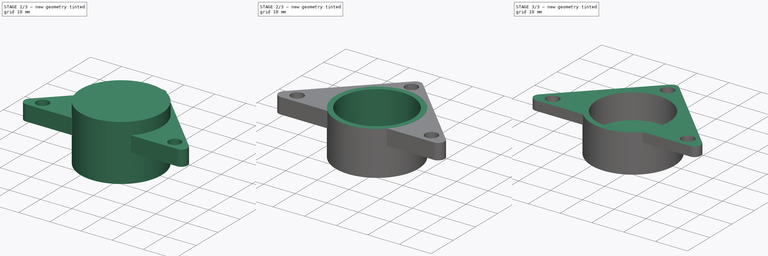
[diagram: build sequence overview — one tinted view per stage of 3, left to right]
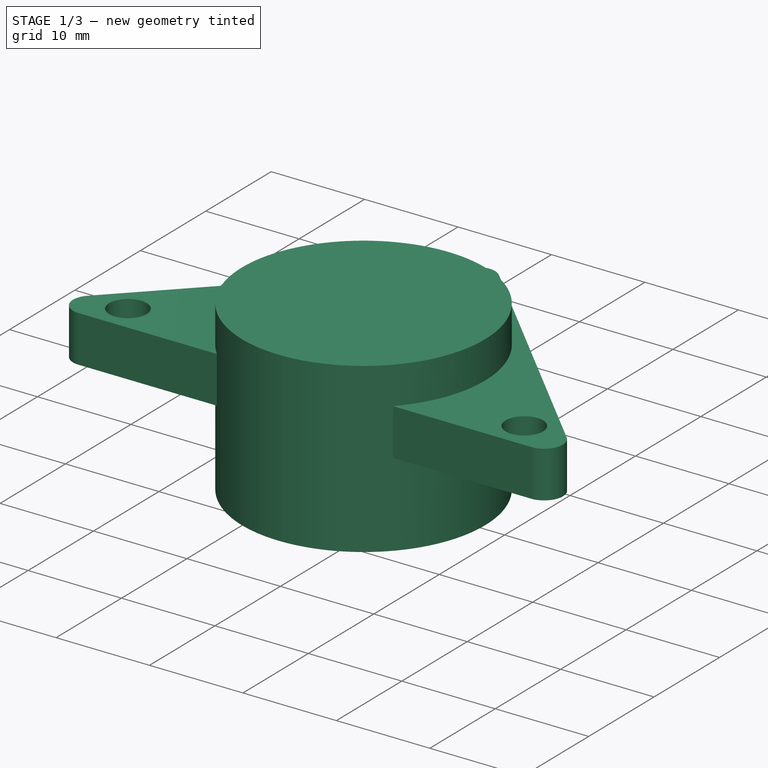
[diagram: stage 1 of 3 — iso view after this stage's code; geometry added in this stage tinted green]
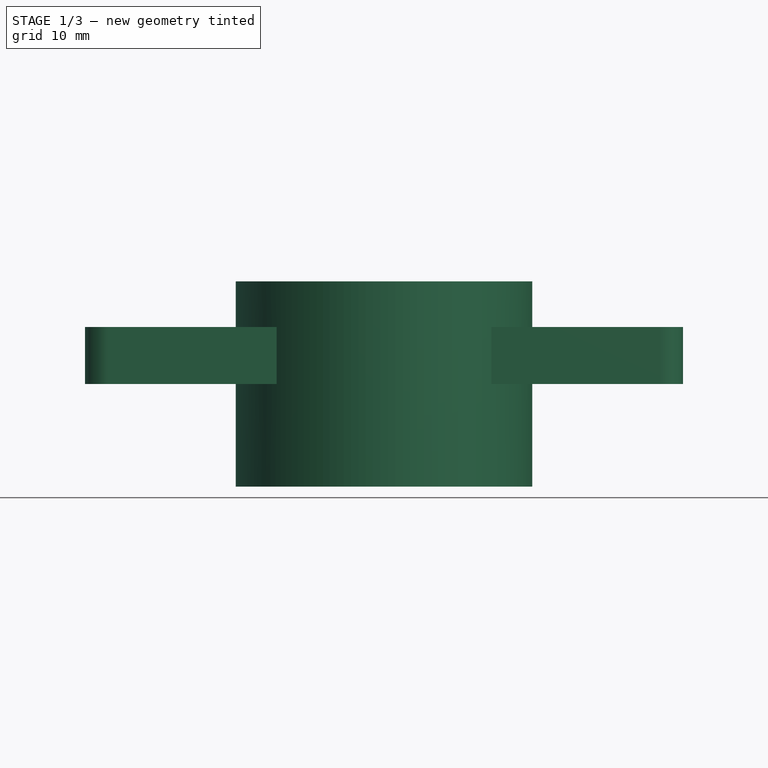
[diagram: stage 1 of 3 — front view after this stage's code; geometry added in this stage tinted green]
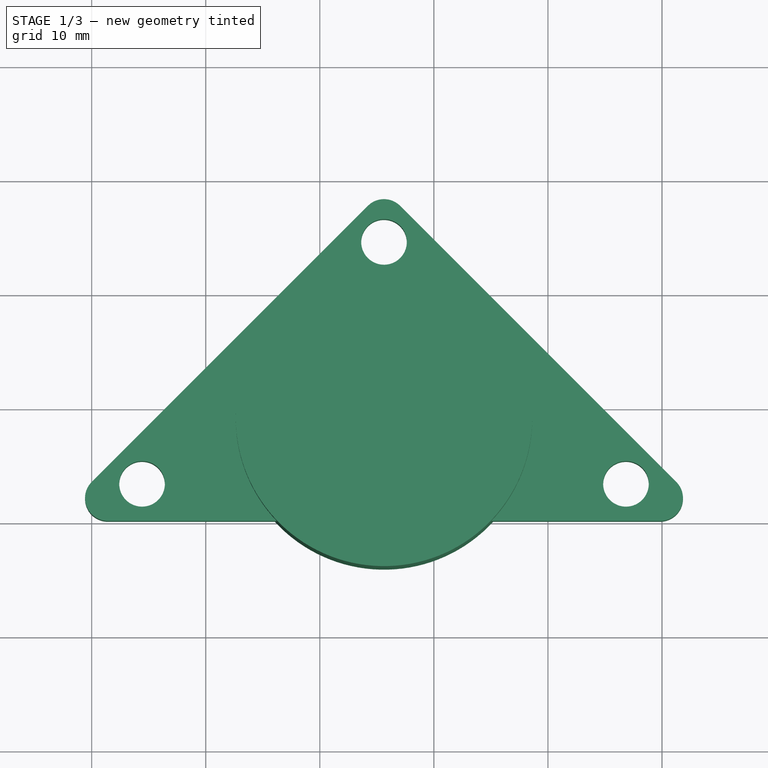
[diagram: stage 1 of 3 — top view after this stage's code; geometry added in this stage tinted green]
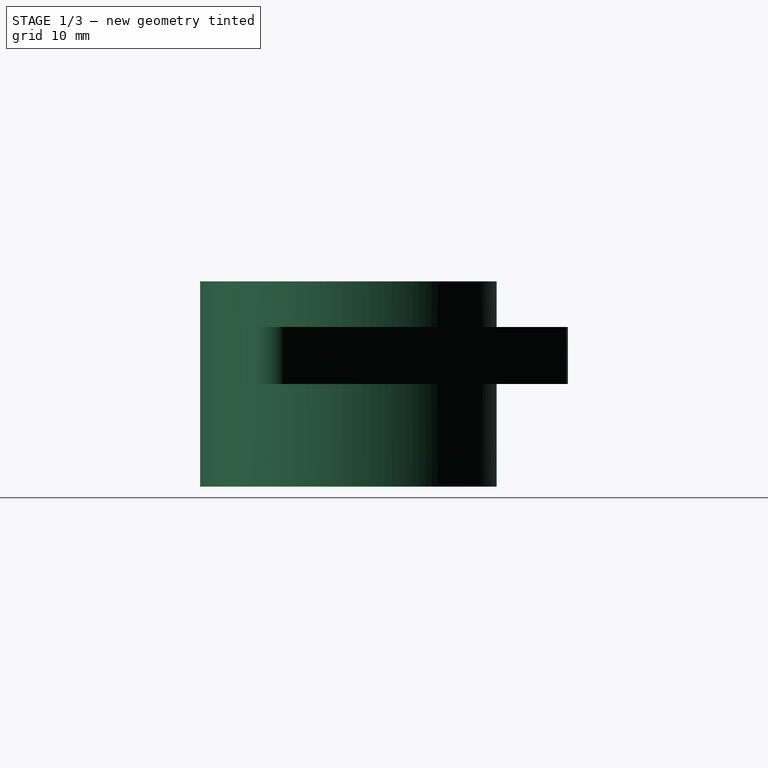
[diagram: stage 1 of 3 — right view after this stage's code; geometry added in this stage tinted green]
FCSTD DOCUMENT  (FreeCAD 0.17R8046 (Git))
Label: motor_mount_1
License: All rights reserved
LicenseURL: http://en.wikipedia.org/wiki/All_rights_reserved
objects: Sketcher::SketchObject×6, PartDesign::Pocket×4, PartDesign::Pad×2, PartDesign::Chamfer×1, PartDesign::Body×1
note: 20 computed .brp shape members not serialized (recipe doc carries the construction recipe); baked Part::Feature solids carry a one-line shape summary decoded from their .brp

FEATURE [Sketcher::SketchObject] Sketch
  MapMode = 5
  Support = -> [XY_Plane]
  sketch-geometry (13):
    g0: LineSegment StartX=1.41421 StartY=0 StartZ=0 EndX=49.8406 EndY=0 EndZ=0
    g1: LineSegment StartX=51.2548 StartY=3.41421 StartZ=0 EndX=27.0416 EndY=27.6274 EndZ=0
    g2: LineSegment StartX=0 StartY=3.41421 StartZ=0 EndX=24.2132 EndY=27.6274 EndZ=0
    g3: LineSegment [constr] StartX=25.6274 StartY=24.4632 StartZ=0 EndX=4.41421 EndY=3.25 EndZ=0
    g4: LineSegment [constr] StartX=46.8406 StartY=3.25 StartZ=0 EndX=25.6274 EndY=24.4632 EndZ=0
    g5: Circle CenterX=4.41421 CenterY=3.25 CenterZ=0 NormalX=0 NormalY=0 NormalZ=1 Radius=2
    g6: Circle CenterX=46.8406 CenterY=3.25 CenterZ=0 NormalX=0 NormalY=0 NormalZ=1 Radius=2
    g7: Circle CenterX=25.6274 CenterY=24.4632 CenterZ=0 NormalX=0 NormalY=0 NormalZ=1 Radius=2
    g8: LineSegment [constr] StartX=4.41421 StartY=3.25 StartZ=0 EndX=46.8406 EndY=3.25 EndZ=0
    g9: ArcOfCircle CenterX=1.41421 CenterY=2 CenterZ=0 NormalX=0 NormalY=0 NormalZ=1 Radius=2 StartAngle=2.35619 EndAngle=4.71239
    g10: ArcOfCircle CenterX=25.6274 CenterY=26.2132 CenterZ=0 NormalX=0 NormalY=0 NormalZ=1 Radius=2 StartAngle=0.785398 EndAngle=2.35619
    g11: ArcOfCircle CenterX=49.8406 CenterY=2 CenterZ=0 NormalX=0 NormalY=0 NormalZ=1 Radius=2 StartAngle=4.71239 EndAngle=7.06858
    g12: LineSegment [constr] StartX=25.6274 StartY=26.2132 StartZ=0 EndX=25.6274 EndY=24.4632 EndZ=0
  constraints (32):
    c: Equal(g1,g2)
    c: Coincident(g4,g3)
    c: Coincident(g5,g3)
    c: Coincident(g7,g3)
    c: Radius(g7) = 2
    c: Equal(g7,g5)
    c: Equal(g7,g6)
    c: Distance(g4) = 30
    c: Coincident(g4,g6)
    c: Coincident(g8,g3)
    c: Coincident(g8,g4)
    c: Horizontal(g8)
    c: Tangent(g2,g9) = 1.5708
    c: Tangent(g0,g9) = -1.5708
    c: Tangent(g2,g10) = 1.5708
    c: Tangent(g1,g10) = -1.5708
    c: Tangent(g1,g11) = -1.5708
    c: Tangent(g0,g11) = -1.5708
    c: Equal(g11,g9)
    c: Equal(g9,g10)
    c: PointOnObject(g0,g-1)
    c: Parallel(g0,g-1)
    c: Parallel(g3,g2)
    c: Parallel(g4,g1)
    c: Coincident(g12,g10)
    c: Vertical(g12)
    c: Coincident(g3,g12)
    c: DistanceY(g12,g12) = 1.75
    c: DistanceX(g4,g11) = 3
    c: Angle(g3,g4) = 1.5708
    c: PointOnObject(g2,g-2)
    c: Radius(g9) = 2
FEATURE [PartDesign::Pad] Pad
  Length = 5
  Length2 = 100
  Profile = -> Sketch
  Type = 0
FEATURE [Sketcher::SketchObject] Sketch001
  ExternalGeometry = -> [Pad]
  MapMode = 5
  Placement = pos=(0,0,0) rot=(1,0,0;3.14159rad)
  Support = -> [Pad]
  sketch-geometry (4):
    g0: Circle CenterX=25.6274 CenterY=-8.9632 CenterZ=0 NormalX=0 NormalY=0 NormalZ=1 Radius=13
    g1: LineSegment [constr] StartX=4.41421 StartY=-3.25 StartZ=0 EndX=25.6274 EndY=-3.25 EndZ=0
    g2: LineSegment [constr] StartX=25.6274 StartY=-3.25 StartZ=0 EndX=46.8406 EndY=-3.25 EndZ=0
    g3: LineSegment [constr] StartX=25.6274 StartY=-3.25 StartZ=0 EndX=25.6274 EndY=-24.4632 EndZ=0
  constraints (10):
    c: Coincident(g1,g-3)
    c: Coincident(g2,g-5)
    c: Coincident(g3,g-4)
    c: Equal(g2,g1)
    c: Equal(g1,g3)
    c: Coincident(g1,g2)
    c: Coincident(g1,g3)
    c: PointOnObject(g0,g3)
    c: DistanceY(g3,g0) = 15.5
    c: Radius(g0) = 13
FEATURE [PartDesign::Pad] Pad001
  BaseFeature = -> Pad
  Length = 18
  Length2 = 100
  Midplane = true
  Profile = -> Sketch001
  Type = 0
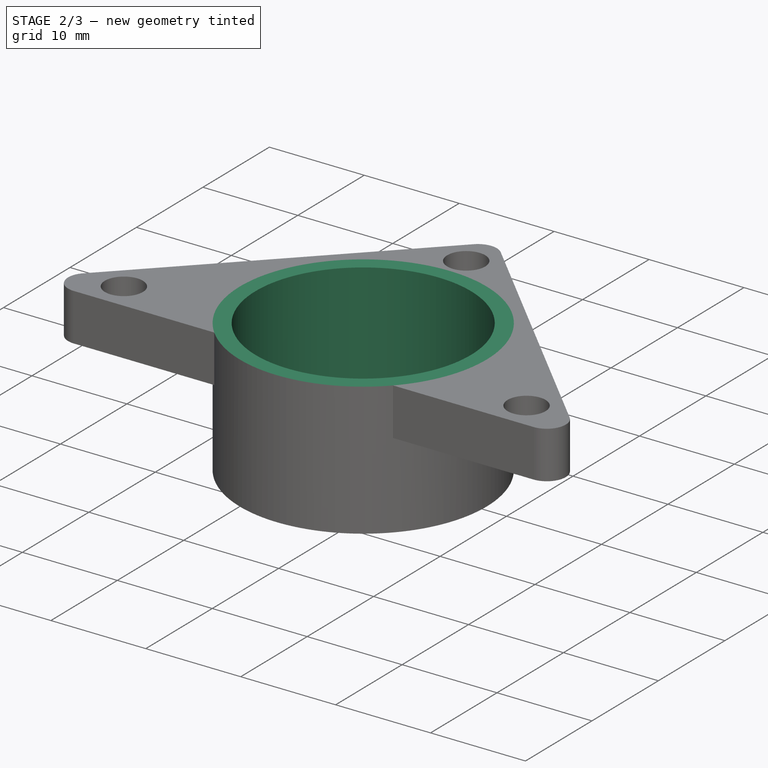
[diagram: stage 2 of 3 — iso view after this stage's code; geometry added in this stage tinted green]
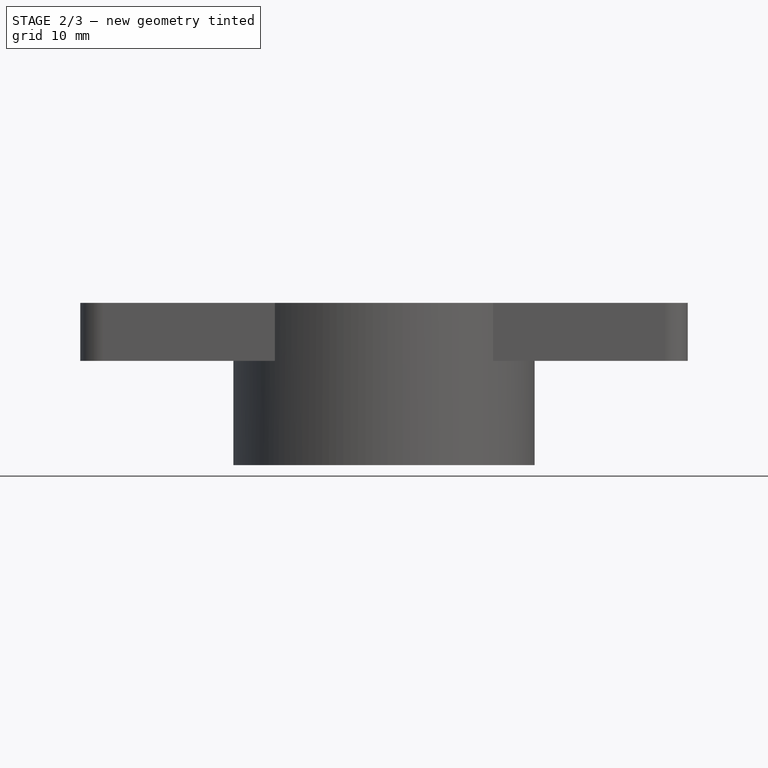
[diagram: stage 2 of 3 — front view after this stage's code; geometry added in this stage tinted green]
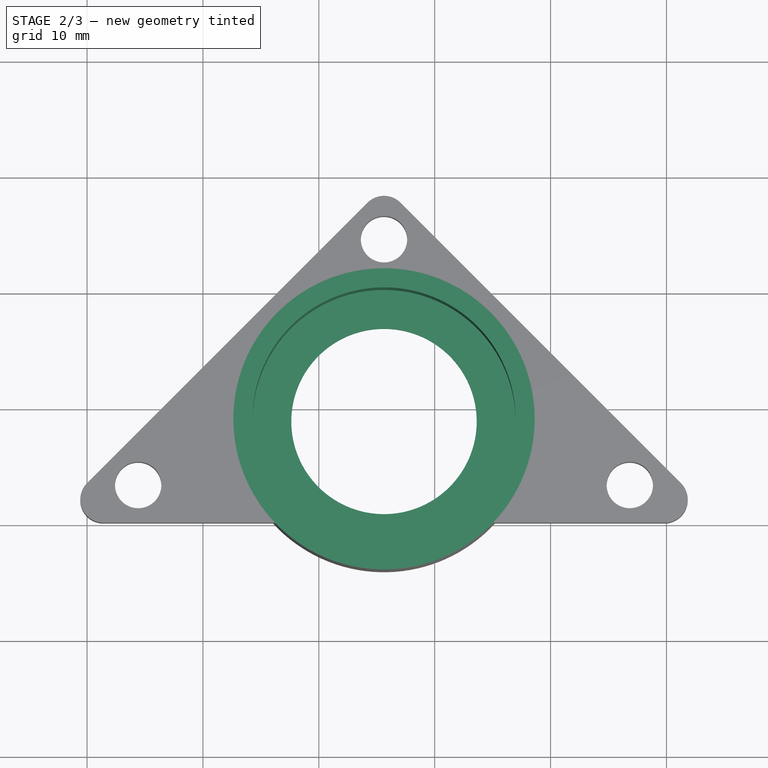
[diagram: stage 2 of 3 — top view after this stage's code; geometry added in this stage tinted green]
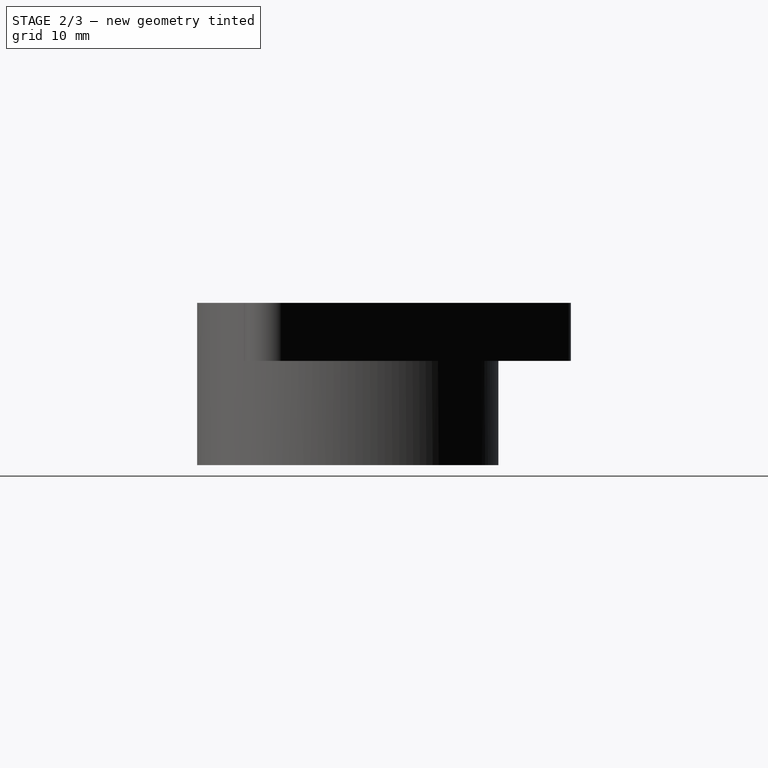
[diagram: stage 2 of 3 — right view after this stage's code; geometry added in this stage tinted green]
FEATURE [Sketcher::SketchObject] Sketch002
  ExternalGeometry = -> [Pad001]
  MapMode = 5
  Placement = pos=(0,0,-9) rot=(1,0,0;3.14159rad)
  Support = -> [Pad001]
  sketch-geometry (1):
    g0: Circle CenterX=25.6274 CenterY=-8.9632 CenterZ=0 NormalX=0 NormalY=0 NormalZ=1 Radius=8
  constraints (2):
    c: Coincident(g0,g-3)
    c: Radius(g0) = 8
FEATURE [PartDesign::Pocket] Pocket
  BaseFeature = -> Pad001
  Length = 5
  Profile = -> Sketch002
  Type = 1
FEATURE [Sketcher::SketchObject] Sketch003
  ExternalGeometry = -> [Pocket]
  MapMode = 5
  Placement = pos=(27.3345,27.3345,0) rot=(0.281085,0.678598,0.678598;2.59356rad)
  Support = -> [Pocket]
  sketch-geometry (4):
    g0: LineSegment StartX=-33.8284 StartY=10 StartZ=0 EndX=3.41421 EndY=10 EndZ=0
    g1: LineSegment StartX=3.41421 StartY=10 StartZ=0 EndX=3.41421 EndY=5 EndZ=0
    g2: LineSegment StartX=3.41421 StartY=5 StartZ=0 EndX=-33.8284 EndY=5 EndZ=0
    g3: LineSegment StartX=-33.8284 StartY=5 StartZ=0 EndX=-33.8284 EndY=10 EndZ=0
  constraints (11):
    c: Coincident(g0,g1)
    c: Coincident(g1,g2)
    c: Coincident(g2,g3)
    c: Coincident(g3,g0)
    c: Horizontal(g0)
    c: Horizontal(g2)
    c: Vertical(g1)
    c: Vertical(g3)
    c: Coincident(g2,g-3)
    c: DistanceX(g-3,g1) = 3
    c: DistanceY(g1,g0) = 5
FEATURE [PartDesign::Pocket] Pocket001
  BaseFeature = -> Pocket
  Length = 5
  Profile = -> Sketch003
  Type = 1
FEATURE [Sketcher::SketchObject] Sketch004
  ExternalGeometry = -> [Pocket001]
  MapMode = 5
  Placement = pos=(0,0,5) rot=(0,0,1;0rad)
  Support = -> [Pocket001]
  sketch-geometry (1):
    g0: Circle CenterX=25.6274 CenterY=8.9632 CenterZ=0 NormalX=0 NormalY=0 NormalZ=1 Radius=11.35
  constraints (2):
    c: Coincident(g0,g-3)
    c: Radius(g0) = 11.35
FEATURE [PartDesign::Pocket] Pocket002
  BaseFeature = -> Pocket001
  Length = 13
  Profile = -> Sketch004
  Type = 0
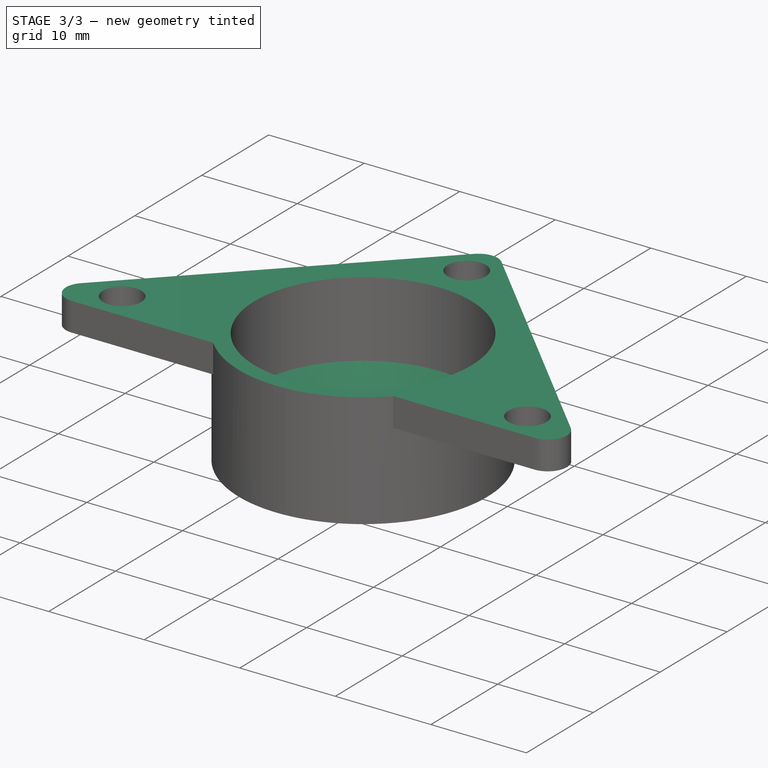
[diagram: stage 3 of 3 — iso view after this stage's code; geometry added in this stage tinted green]
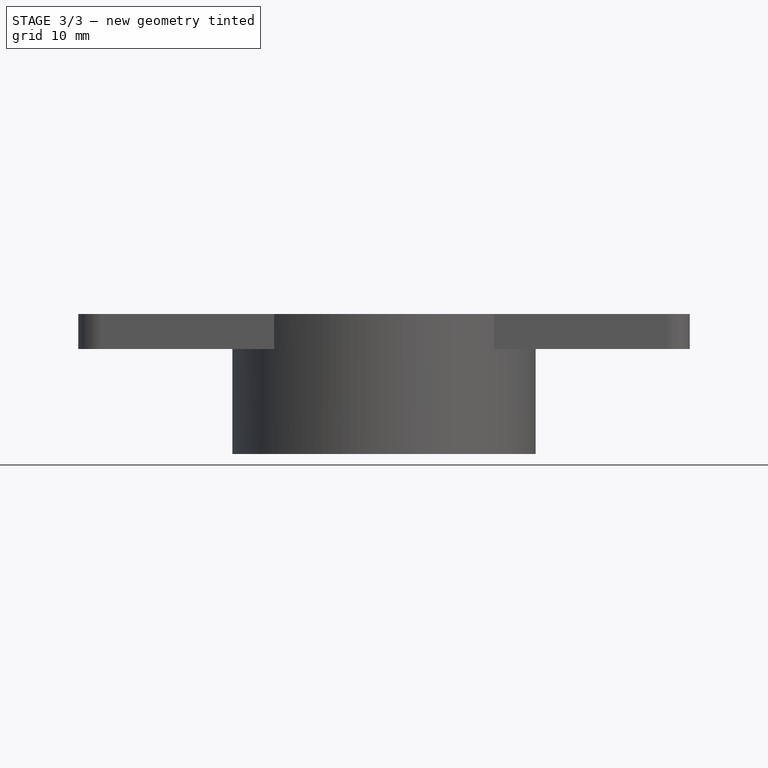
[diagram: stage 3 of 3 — front view after this stage's code; geometry added in this stage tinted green]
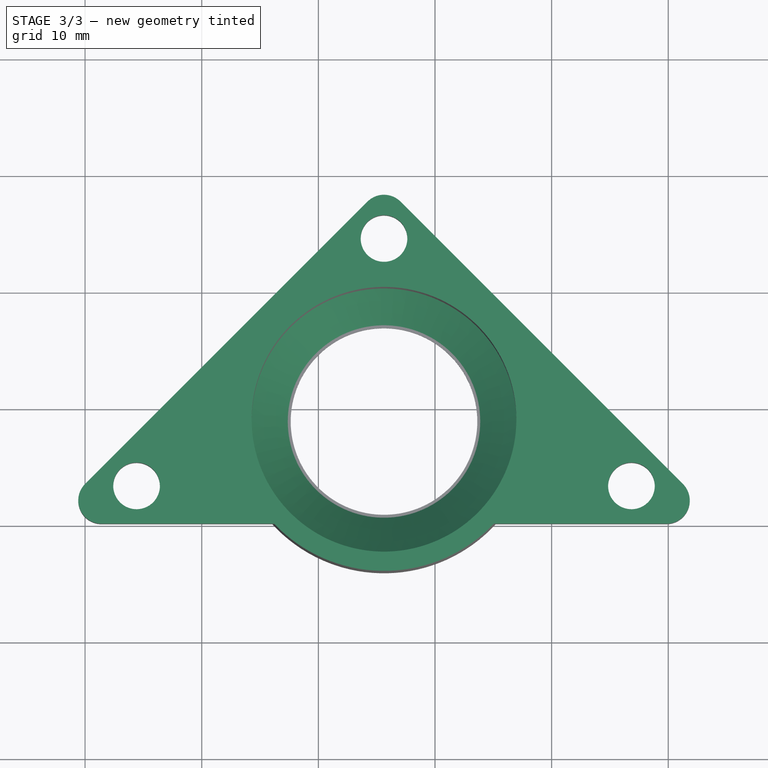
[diagram: stage 3 of 3 — top view after this stage's code; geometry added in this stage tinted green]
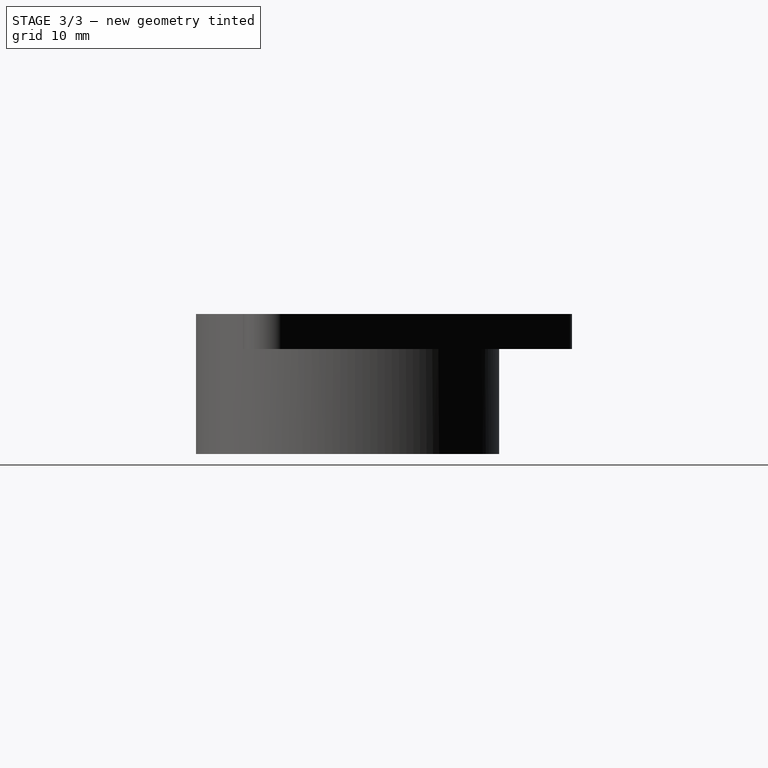
[diagram: stage 3 of 3 — right view after this stage's code; geometry added in this stage tinted green]
FEATURE [PartDesign::Chamfer] Chamfer
  Base = -> Pocket002 [Edge44]
  BaseFeature = -> Pocket002
  Size = 3.1
FEATURE [Sketcher::SketchObject] Sketch005
  MapMode = 5
  Placement = pos=(-1.70711,1.70711,0) rot=(-0.281085,0.678598,0.678598;3.68962rad)
  Support = -> [Chamfer]
  sketch-geometry (4):
    g0: LineSegment StartX=-40 StartY=7 StartZ=0 EndX=0 EndY=7 EndZ=0
    g1: LineSegment StartX=0 StartY=7 StartZ=0 EndX=0 EndY=3 EndZ=0
    g2: LineSegment StartX=0 StartY=3 StartZ=0 EndX=-40 EndY=3 EndZ=0
    g3: LineSegment StartX=-40 StartY=3 StartZ=0 EndX=-40 EndY=7 EndZ=0
  constraints (12):
    c: Coincident(g0,g1)
    c: Coincident(g1,g2)
    c: Coincident(g2,g3)
    c: Coincident(g3,g0)
    c: Horizontal(g0)
    c: Horizontal(g2)
    c: Vertical(g1)
    c: Vertical(g3)
    c: PointOnObject(g1,g-2)
    c: DistanceY(g-1,g1) = 3
    c: DistanceY(g3,g3) = 4
    c: DistanceX(g2,g2) = 40
FEATURE [PartDesign::Pocket] Pocket003
  BaseFeature = -> Chamfer
  Length = 5
  Profile = -> Sketch005
  Type = 1
FEATURE [PartDesign::Body] Body
  Model = -> [Sketch,Pad,Sketch001,Pad001,Sketch002,Pocket,Sketch003,Pocket001,Sketch004,Pocket002,Chamfer,Sketch005,Pocket003]
  Origin = -> BodyOrigin
  Tip = -> Pocket003
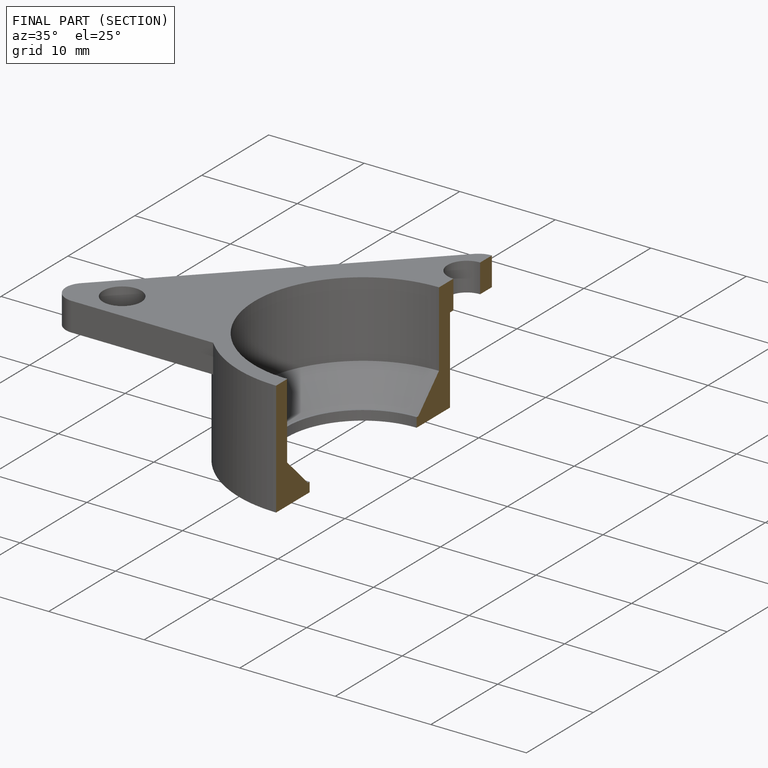
[diagram: finished part — half-section view (interior)]
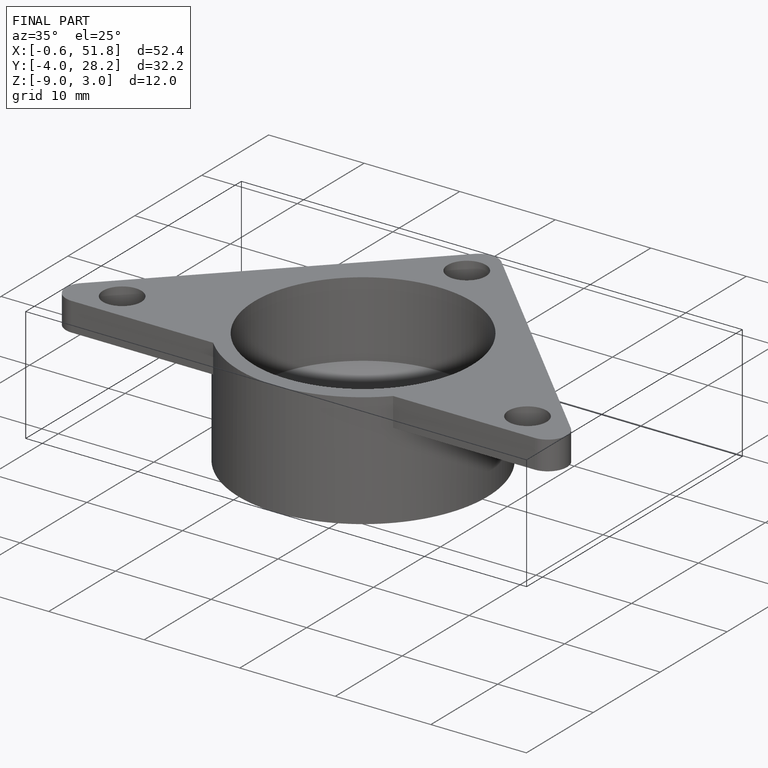
[diagram: finished part — iso view with bounding-box wireframe]
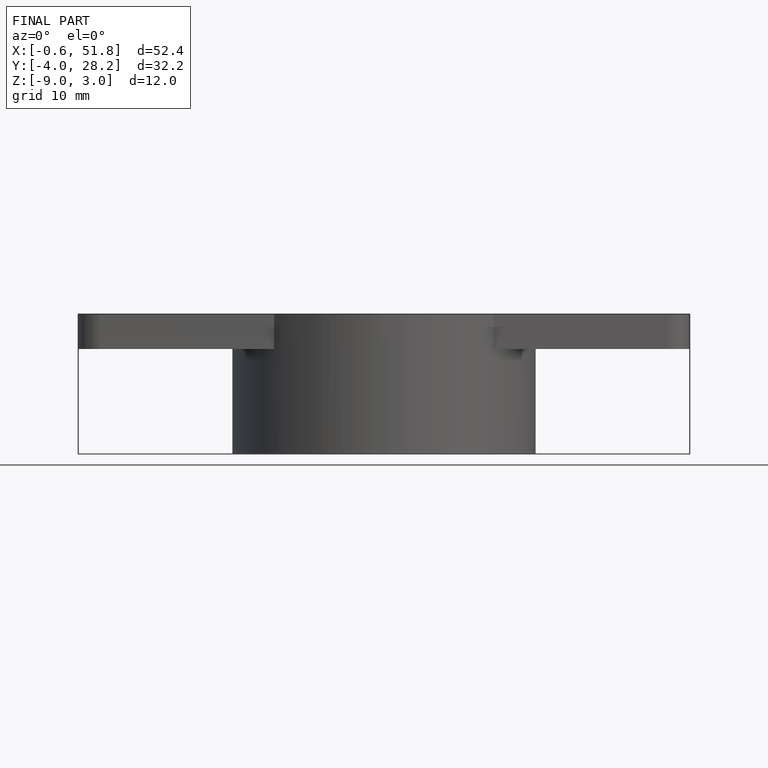
[diagram: finished part — front view with bounding-box wireframe]
